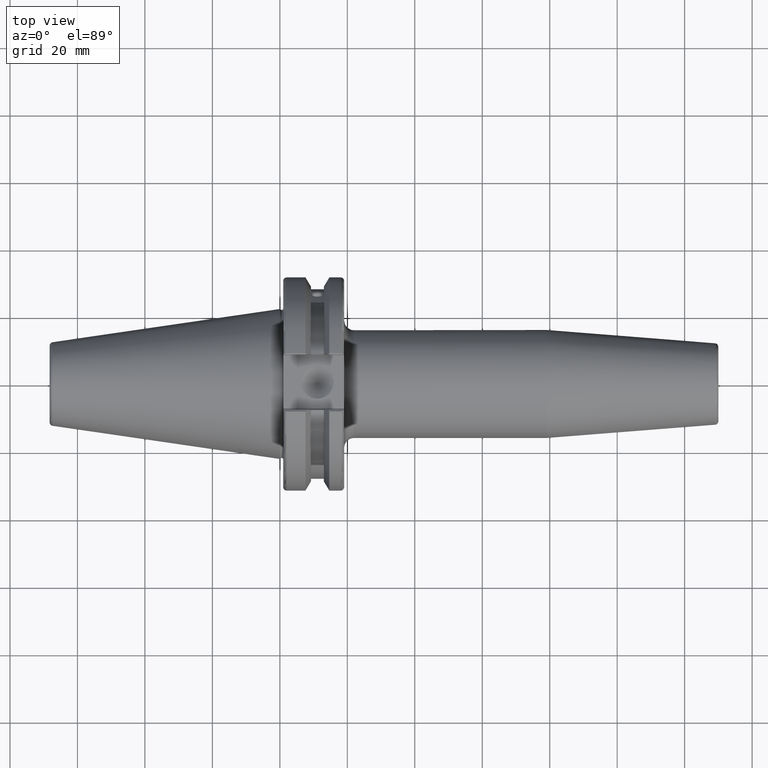
[diagram: clean part render]
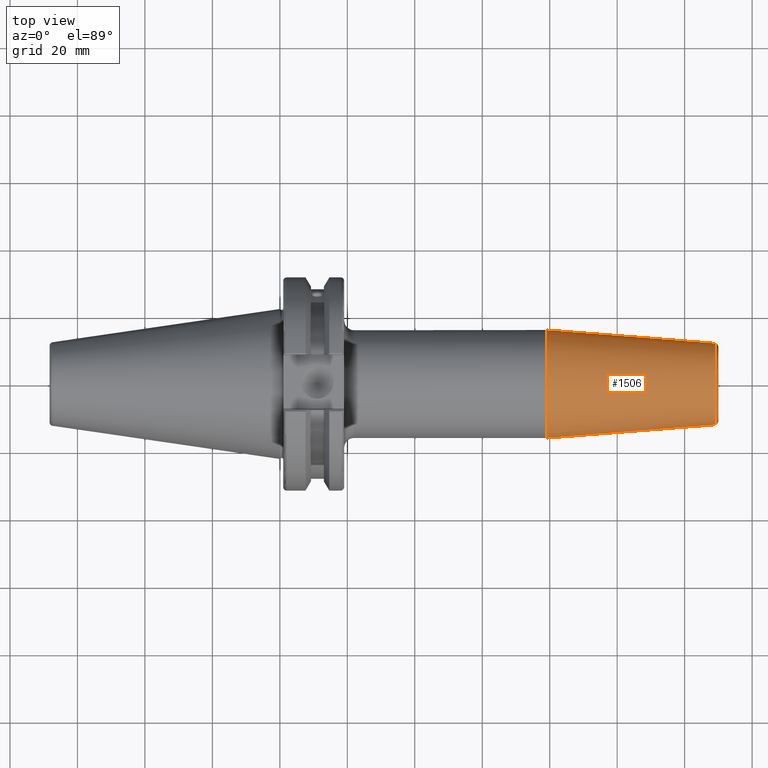
[diagram: same view with one face highlighted and labeled with its STEP entity id]
A machine part, top view. The second image highlights one B-rep face of the part: STEP entity #1506.
In plain terms, the highlighted conical surface has half-angle 4.5 deg.
Its self-contained STEP definition (entity closure, byte-faithful):
#181=FACE_OUTER_BOUND('',#272,.T.);
#272=EDGE_LOOP('',(#1041,#1042,#1043,#1044,#1045));
#373=LINE('',#2281,#466);
#466=VECTOR('',#1830,14.);
#559=CIRCLE('',#1622,12.0725268420749);
#560=CIRCLE('',#1623,12.0725268420749);
#562=CIRCLE('',#1627,16.);
#635=VERTEX_POINT('',#2271);
#636=VERTEX_POINT('',#2273);
#638=VERTEX_POINT('',#2280);
#794=EDGE_CURVE('',#635,#636,#559,.T.);
#795=EDGE_CURVE('',#636,#635,#560,.T.);
#797=EDGE_CURVE('',#636,#638,#373,.T.);
#798=EDGE_CURVE('',#638,#638,#562,.T.);
#1041=ORIENTED_EDGE('',*,*,#795,.F.);
#1042=ORIENTED_EDGE('',*,*,#797,.T.);
#1043=ORIENTED_EDGE('',*,*,#798,.T.);
#1044=ORIENTED_EDGE('',*,*,#797,.F.);
#1045=ORIENTED_EDGE('',*,*,#794,.F.);
#1488=CONICAL_SURFACE('',#1626,14.,0.0785398163397448);
#1506=ADVANCED_FACE('',(#181),#1488,.T.);
#1622=AXIS2_PLACEMENT_3D('',#2274,#1820,#1821);
#1623=AXIS2_PLACEMENT_3D('',#2275,#1822,#1823);
#1626=AXIS2_PLACEMENT_3D('',#2279,#1828,#1829);
#1627=AXIS2_PLACEMENT_3D('',#2282,#1831,#1832);
#1820=DIRECTION('center_axis',(1.,0.,0.));
#1821=DIRECTION('ref_axis',(0.,-1.,3.06161699786838E-17));
#1822=DIRECTION('center_axis',(1.,0.,0.));
#1823=DIRECTION('ref_axis',(0.,-1.,3.06161699786838E-17));
#1828=DIRECTION('center_axis',(-1.,0.,0.));
#1829=DIRECTION('ref_axis',(0.,1.,0.));
#1830=DIRECTION('',(-0.996917333733128,-0.078459095727845,-9.60846804471011E-18));
#1831=DIRECTION('center_axis',(1.,0.,0.));
#1832=DIRECTION('ref_axis',(0.,0.,-1.));
#2271=CARTESIAN_POINT('',(129.078459095728,-1.47845813547676E-15,12.0725268420749));
#2273=CARTESIAN_POINT('',(129.078459095728,-12.0725268420749,-1.47845813547676E-15));
#2274=CARTESIAN_POINT('Origin',(129.078459095728,0.,-1.84807266934594E-15));
#2275=CARTESIAN_POINT('Origin',(129.078459095728,0.,-1.84807266934594E-15));
#2279=CARTESIAN_POINT('Origin',(104.587590527651,0.,0.));
#2280=CARTESIAN_POINT('',(79.1751810553012,-16.,-1.95943487863577E-15));
#2281=CARTESIAN_POINT('',(104.587590527651,-14.,-1.71450551880629E-15));
#2282=CARTESIAN_POINT('Origin',(79.1751810553012,0.,0.));